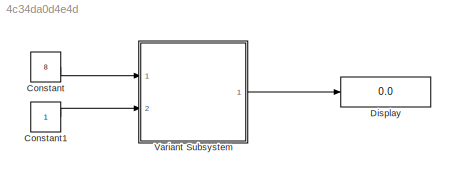
MODEL slx_4c34da0d4e4d
KIND model
CONFIG AbsTol = auto
CONFIG EnableMultiTasking = off
CONFIG FixedStep = auto
CONFIG MaxStep = auto
CONFIG MinStep = auto
CONFIG RelTol = 1e-3
CONFIG SampleTimeConstraint = Unconstrained
CONFIG Solver = VariableStepAuto
CONFIG SolverName = VariableStepAuto
CONFIG StartTime = 0.0
CONFIG StopTime = 10.0
BLOCK [Constant] Constant
  Value = 8
BLOCK [Constant] Constant1
BLOCK [Display] Display
  Decimation = 1
  Ports = [1]
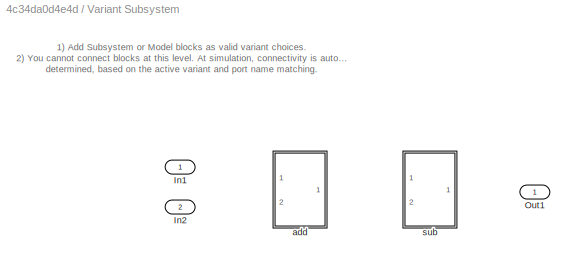
BLOCK [SubSystem] Variant Subsystem
  Ports = [2, 1]
  RequestExecContextInheritance = off
  Variant = on
BLOCK [Inport] Variant Subsystem/In1
  IconDisplay = Port number
BLOCK [Inport] Variant Subsystem/In2
  IconDisplay = Port number
  Port = 2
BLOCK [Outport] Variant Subsystem/Out1
  IconDisplay = Port number
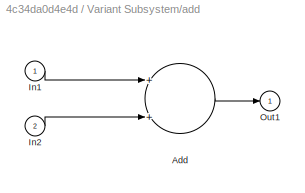
BLOCK [SubSystem] Variant Subsystem/add
  Ports = [2, 1]
  RequestExecContextInheritance = off
  VariantControl = addition
BLOCK [Sum] Variant Subsystem/add/Add
  InputSameDT = off
  OutDataTypeStr = Inherit: Inherit via internal rule
  Ports = [2, 1]
  SaturateOnIntegerOverflow = off
BLOCK [Inport] Variant Subsystem/add/In1
  IconDisplay = Port number
BLOCK [Inport] Variant Subsystem/add/In2
  IconDisplay = Port number
  Port = 2
BLOCK [Outport] Variant Subsystem/add/Out1
  IconDisplay = Port number
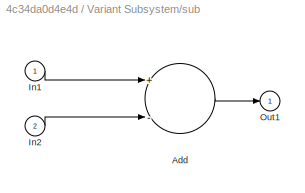
BLOCK [SubSystem] Variant Subsystem/sub
  Ports = [2, 1]
  RequestExecContextInheritance = off
  VariantControl = sub
BLOCK [Sum] Variant Subsystem/sub/Add
  InputSameDT = off
  Inputs = +-
  OutDataTypeStr = Inherit: Inherit via internal rule
  Ports = [2, 1]
  SaturateOnIntegerOverflow = off
BLOCK [Inport] Variant Subsystem/sub/In1
  IconDisplay = Port number
BLOCK [Inport] Variant Subsystem/sub/In2
  IconDisplay = Port number
  Port = 2
BLOCK [Outport] Variant Subsystem/sub/Out1
  IconDisplay = Port number
ANNOTATION Variant Subsystem: 1) Add Subsystem or Model blocks as valid variant choices. 2) You cannot connect blocks at this level. At simulation, connectivity is automatically determined, based on the active variant and port name matching.
LINE Constant1:1 -> Variant Subsystem:2
LINE Constant:1 -> Variant Subsystem:1
LINE Variant Subsystem/add/Add:1 -> Variant Subsystem/add/Out1:1
LINE Variant Subsystem/add/In1:1 -> Variant Subsystem/add/Add:1
LINE Variant Subsystem/add/In2:1 -> Variant Subsystem/add/Add:2
LINE Variant Subsystem/sub/Add:1 -> Variant Subsystem/sub/Out1:1
LINE Variant Subsystem/sub/In1:1 -> Variant Subsystem/sub/Add:1
LINE Variant Subsystem/sub/In2:1 -> Variant Subsystem/sub/Add:2
LINE Variant Subsystem:1 -> Display:1
